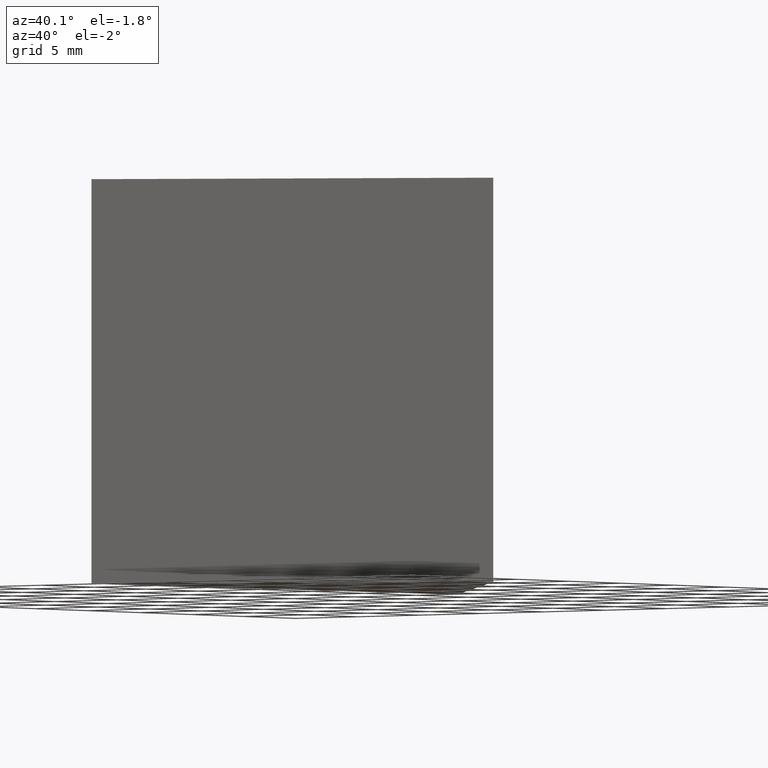
[diagram: clean part render]
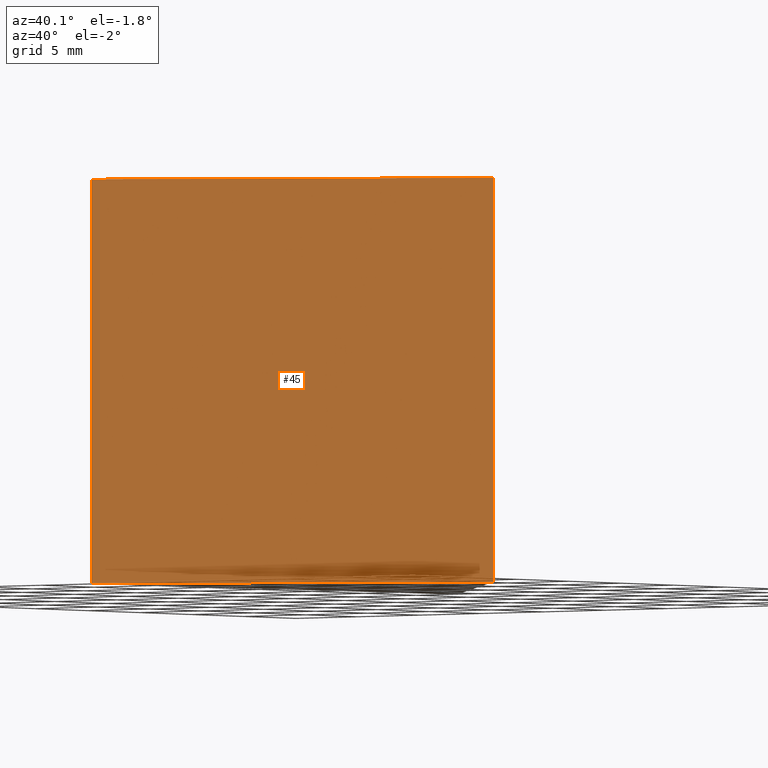
[diagram: same view with one face highlighted and labeled with its STEP entity id]
A machine part, auxiliary view. The second image highlights one B-rep face of the part: STEP entity #45.
In plain terms, the highlighted planar face has unit normal (-0.5514, 0.8342, 0).
Its self-contained STEP definition (entity closure, byte-faithful):
#5 = VERTEX_POINT ( 'NONE', #54 ) ;
#9 = CARTESIAN_POINT ( 'NONE',  ( 21.54217066758669200, 14.63250925510907100, 25.00000000000000000 ) ) ;
#10 = DIRECTION ( 'NONE',  ( -0.5514015260034010900, 0.8342399877260263700, 0.0000000000000000000 ) ) ;
#13 = VECTOR ( 'NONE', #78, 1000.000000000000000 ) ;
#14 = CARTESIAN_POINT ( 'NONE',  ( 21.54217066758669200, 14.63250925510907100, 25.00000000000000000 ) ) ;
#21 = ORIENTED_EDGE ( 'NONE', *, *, #34, .T. ) ;
#22 = EDGE_LOOP ( 'NONE', ( #42, #103, #155, #21 ) ) ;
#33 = VERTEX_POINT ( 'NONE', #144 ) ;
#34 = EDGE_CURVE ( 'NONE', #5, #85, #95, .T. ) ;
#38 = VERTEX_POINT ( 'NONE', #59 ) ;
#42 = ORIENTED_EDGE ( 'NONE', *, *, #149, .T. ) ;
#45 = ADVANCED_FACE ( 'NONE', ( #159 ), #81, .F. ) ;
#50 = CARTESIAN_POINT ( 'NONE',  ( 21.54217066758669200, 14.63250925510907100, 25.00000000000000000 ) ) ;
#53 = LINE ( 'NONE', #50, #151 ) ;
#54 = CARTESIAN_POINT ( 'NONE',  ( 0.6861709744360347000, 0.8474711050240408800, 25.00000000000000000 ) ) ;
#59 = CARTESIAN_POINT ( 'NONE',  ( 21.54217066758669200, 14.63250925510907100, 25.00000000000000000 ) ) ;
#60 = LINE ( 'NONE', #164, #13 ) ;
#62 = VECTOR ( 'NONE', #124, 1000.000000000000000 ) ;
#71 = DIRECTION ( 'NONE',  ( -0.8342399877260263700, -0.5514015260034010900, 0.0000000000000000000 ) ) ;
#73 = EDGE_CURVE ( 'NONE', #5, #38, #112, .T. ) ;
#78 = DIRECTION ( 'NONE',  ( 0.8342399877260263700, 0.5514015260034012000, -0.0000000000000000000 ) ) ;
#79 = DIRECTION ( 'NONE',  ( 0.8342399877260263700, 0.5514015260034012000, -0.0000000000000000000 ) ) ;
#81 = PLANE ( 'NONE',  #115 ) ;
#85 = VERTEX_POINT ( 'NONE', #114 ) ;
#95 = LINE ( 'NONE', #152, #62 ) ;
#101 = VECTOR ( 'NONE', #79, 1000.000000000000000 ) ;
#103 = ORIENTED_EDGE ( 'NONE', *, *, #153, .F. ) ;
#109 = DIRECTION ( 'NONE',  ( -0.0000000000000000000, -0.0000000000000000000, -1.000000000000000000 ) ) ;
#112 = LINE ( 'NONE', #9, #101 ) ;
#114 = CARTESIAN_POINT ( 'NONE',  ( 0.6861709744360347000, 0.8474711050240408800, 0.0000000000000000000 ) ) ;
#115 = AXIS2_PLACEMENT_3D ( 'NONE', #14, #10, #71 ) ;
#124 = DIRECTION ( 'NONE',  ( -0.0000000000000000000, -0.0000000000000000000, -1.000000000000000000 ) ) ;
#144 = CARTESIAN_POINT ( 'NONE',  ( 21.54217066758669200, 14.63250925510907100, 0.0000000000000000000 ) ) ;
#149 = EDGE_CURVE ( 'NONE', #85, #33, #60, .T. ) ;
#151 = VECTOR ( 'NONE', #109, 1000.000000000000000 ) ;
#152 = CARTESIAN_POINT ( 'NONE',  ( 0.6861709744360347000, 0.8474711050240408800, 25.00000000000000000 ) ) ;
#153 = EDGE_CURVE ( 'NONE', #38, #33, #53, .T. ) ;
#155 = ORIENTED_EDGE ( 'NONE', *, *, #73, .F. ) ;
#159 = FACE_OUTER_BOUND ( 'NONE', #22, .T. ) ;
#164 = CARTESIAN_POINT ( 'NONE',  ( 21.54217066758669200, 14.63250925510907100, 0.0000000000000000000 ) ) ;